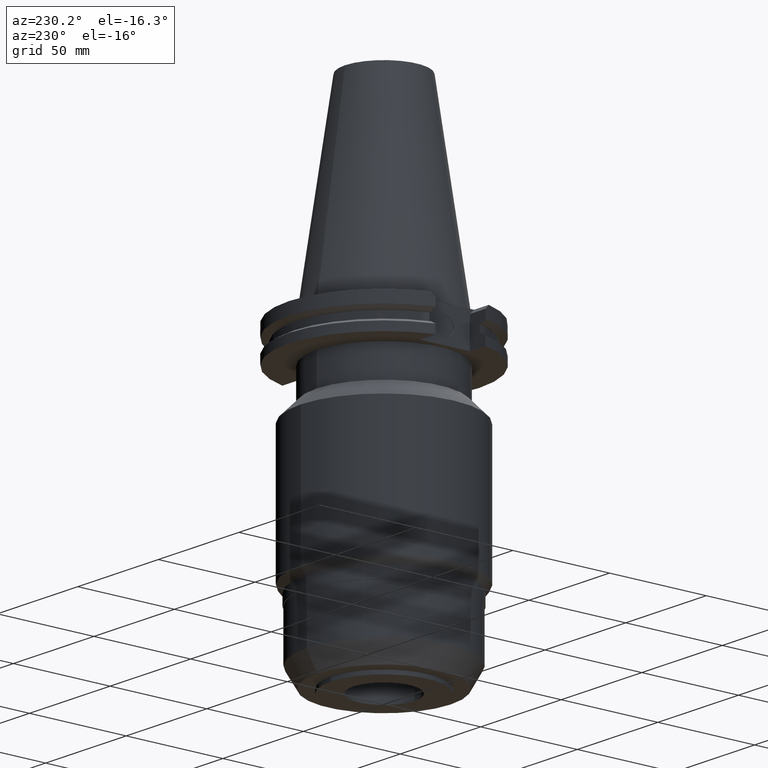
[diagram: clean part render]
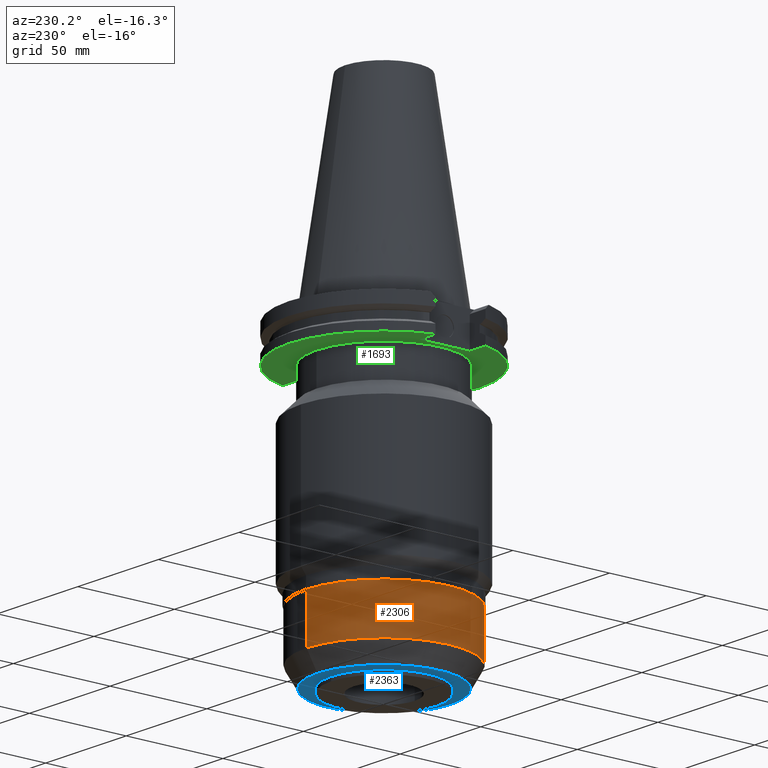
[diagram: same view with three faces highlighted in distinct colors, each labeled with its STEP entity id]
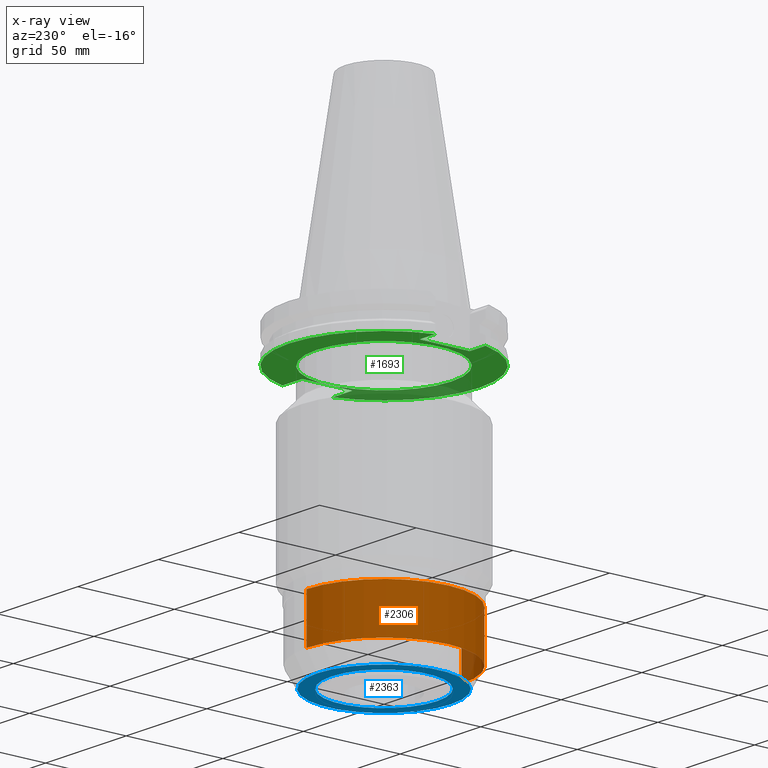
[diagram: x-ray of the same camera — body ghosted, the three highlighted faces saturated]
A machine part, auxiliary view with three faces highlighted in distinct colors.
The next image is the same camera in x-ray (body ghosted, the three faces saturated) — at least one of them is partly hidden behind the body in this view.
Their STEP definitions:

[orange] entity #2306 — the highlighted cylindrical surface (partial cylindrical patch) has radius 40 mm, axis along (0, 0, -1).
#998=CARTESIAN_POINT('',(0.E0,2.625887666732E-14,-1.19E2));
#999=DIRECTION('',(0.E0,0.E0,-1.E0));
#1000=DIRECTION('',(0.E0,-1.E0,0.E0));
#1001=AXIS2_PLACEMENT_3D('',#998,#999,#1000);
#1014=DIRECTION('',(0.E0,-1.140377230232E-14,-1.E0));
#1015=VECTOR('',#1014,2.43E1);
#1016=CARTESIAN_POINT('',(0.E0,-4.E1,-1.19E2));
#1017=LINE('',#1016,#1015);
#1021=DIRECTION('',(0.E0,1.111136788431E-14,-1.E0));
#1022=VECTOR('',#1021,2.43E1);
#1023=CARTESIAN_POINT('',(0.E0,4.E1,-1.19E2));
#1024=LINE('',#1023,#1022);
#1043=CARTESIAN_POINT('',(0.E0,0.E0,-1.433E2));
#1044=DIRECTION('',(0.E0,0.E0,1.E0));
#1045=DIRECTION('',(0.E0,1.E0,0.E0));
#1046=AXIS2_PLACEMENT_3D('',#1043,#1044,#1045);
#1370=CARTESIAN_POINT('',(0.E0,4.E1,-1.433E2));
#1371=VERTEX_POINT('',#1370);
#1372=CARTESIAN_POINT('',(0.E0,-4.E1,-1.433E2));
#1373=VERTEX_POINT('',#1372);
#1374=CARTESIAN_POINT('',(0.E0,4.E1,-1.19E2));
#1375=VERTEX_POINT('',#1374);
#1376=CARTESIAN_POINT('',(0.E0,-4.E1,-1.19E2));
#1377=VERTEX_POINT('',#1376);
#2292=CARTESIAN_POINT('',(0.E0,2.625887666732E-14,1.1442E2));
#2293=DIRECTION('',(0.E0,0.E0,-1.E0));
#2294=DIRECTION('',(0.E0,-1.E0,0.E0));
#2295=AXIS2_PLACEMENT_3D('',#2292,#2293,#2294);
#2296=CYLINDRICAL_SURFACE('',#2295,4.E1);
#2298=ORIENTED_EDGE('',*,*,#2297,.F.);
#2299=ORIENTED_EDGE('',*,*,#2285,.F.);
#2301=ORIENTED_EDGE('',*,*,#2300,.T.);
#2303=ORIENTED_EDGE('',*,*,#2302,.F.);
#2304=EDGE_LOOP('',(#2298,#2299,#2301,#2303));
#2305=FACE_OUTER_BOUND('',#2304,.F.);
#1002=CIRCLE('',#1001,4.E1);
#1047=CIRCLE('',#1046,4.E1);
#2285=EDGE_CURVE('',#1377,#1375,#1002,.T.);
#2297=EDGE_CURVE('',#1375,#1371,#1024,.T.);
#2300=EDGE_CURVE('',#1377,#1373,#1017,.T.);
#2302=EDGE_CURVE('',#1371,#1373,#1047,.T.);
#2306=ADVANCED_FACE('',(#2305),#2296,.T.);

[blue] entity #2363 — the highlighted planar face has unit normal (0, 0, -1).
#1058=CARTESIAN_POINT('',(0.E0,0.E0,-1.528E2));
#1059=DIRECTION('',(0.E0,0.E0,1.E0));
#1060=DIRECTION('',(0.E0,-1.E0,0.E0));
#1061=AXIS2_PLACEMENT_3D('',#1058,#1059,#1060);
#1066=CARTESIAN_POINT('',(0.E0,0.E0,-1.528E2));
#1067=DIRECTION('',(0.E0,0.E0,1.E0));
#1068=DIRECTION('',(0.E0,1.E0,0.E0));
#1069=AXIS2_PLACEMENT_3D('',#1066,#1067,#1068);
#1074=CARTESIAN_POINT('',(0.E0,2.625887666732E-14,-1.528E2));
#1075=DIRECTION('',(0.E0,0.E0,-1.E0));
#1076=DIRECTION('',(0.E0,-1.E0,0.E0));
#1077=AXIS2_PLACEMENT_3D('',#1074,#1075,#1076);
#1082=CARTESIAN_POINT('',(0.E0,2.625887666732E-14,-1.528E2));
#1083=DIRECTION('',(0.E0,0.E0,-1.E0));
#1084=DIRECTION('',(0.E0,1.E0,0.E0));
#1085=AXIS2_PLACEMENT_3D('',#1082,#1083,#1084);
#1362=CARTESIAN_POINT('',(0.E0,2.735E1,-1.528E2));
#1363=VERTEX_POINT('',#1362);
#1364=CARTESIAN_POINT('',(0.E0,-2.735E1,-1.528E2));
#1365=VERTEX_POINT('',#1364);
#1366=CARTESIAN_POINT('',(0.E0,-3.451517244270E1,-1.528E2));
#1367=CARTESIAN_POINT('',(0.E0,3.451517244270E1,-1.528E2));
#1368=VERTEX_POINT('',#1366);
#1369=VERTEX_POINT('',#1367);
#2348=CARTESIAN_POINT('',(0.E0,0.E0,-1.528E2));
#2349=DIRECTION('',(0.E0,0.E0,-1.E0));
#2350=DIRECTION('',(0.E0,-1.E0,0.E0));
#2351=AXIS2_PLACEMENT_3D('',#2348,#2349,#2350);
#2352=PLANE('',#2351);
#2353=ORIENTED_EDGE('',*,*,#2327,.T.);
#2354=ORIENTED_EDGE('',*,*,#2343,.T.);
#2355=EDGE_LOOP('',(#2353,#2354));
#2356=FACE_OUTER_BOUND('',#2355,.F.);
#2358=ORIENTED_EDGE('',*,*,#2357,.T.);
#2360=ORIENTED_EDGE('',*,*,#2359,.T.);
#2361=EDGE_LOOP('',(#2358,#2360));
#2362=FACE_BOUND('',#2361,.F.);
#1062=CIRCLE('',#1061,3.451517244270E1);
#1070=CIRCLE('',#1069,3.451517244270E1);
#1078=CIRCLE('',#1077,2.735E1);
#1086=CIRCLE('',#1085,2.735E1);
#2327=EDGE_CURVE('',#1368,#1369,#1062,.T.);
#2343=EDGE_CURVE('',#1369,#1368,#1070,.T.);
#2357=EDGE_CURVE('',#1365,#1363,#1078,.T.);
#2359=EDGE_CURVE('',#1363,#1365,#1086,.T.);
#2363=ADVANCED_FACE('',(#2356,#2362),#2352,.T.);

[green] entity #1693 — the highlighted planar face has unit normal (0, 0, -1).
#170=DIRECTION('',(0.E0,-1.E0,0.E0));
#171=VECTOR('',#170,2.591E1);
#172=CARTESIAN_POINT('',(3.527E1,1.2955E1,-1.905E1));
#173=LINE('',#172,#171);
#205=DIRECTION('',(1.E0,1.455229645531E-14,0.E0));
#206=VECTOR('',#205,1.220671146204E1);
#207=CARTESIAN_POINT('',(3.527E1,1.2955E1,-1.905E1));
#208=LINE('',#207,#206);
#212=CARTESIAN_POINT('',(0.E0,2.625887666732E-14,-1.905E1));
#213=DIRECTION('',(0.E0,0.E0,1.E0));
#214=DIRECTION('',(9.647287063661E-1,2.632461264923E-1,0.E0));
#215=AXIS2_PLACEMENT_3D('',#212,#213,#214);
#220=CARTESIAN_POINT('',(0.E0,2.625887666732E-14,-1.905E1));
#221=DIRECTION('',(0.E0,0.E0,1.E0));
#222=DIRECTION('',(0.E0,1.E0,0.E0));
#223=AXIS2_PLACEMENT_3D('',#220,#221,#222);
#228=DIRECTION('',(-1.E0,-1.795085297572E-14,0.E0));
#229=VECTOR('',#228,9.796711462041E0);
#230=CARTESIAN_POINT('',(-3.768E1,-1.2955E1,-1.905E1));
#231=LINE('',#230,#229);
#235=CARTESIAN_POINT('',(0.E0,2.625887666732E-14,-1.905E1));
#236=DIRECTION('',(0.E0,0.E0,1.E0));
#237=DIRECTION('',(-9.647287063661E-1,-2.632461264923E-1,0.E0));
#238=AXIS2_PLACEMENT_3D('',#235,#236,#237);
#243=CARTESIAN_POINT('',(0.E0,2.625887666732E-14,-1.905E1));
#244=DIRECTION('',(0.E0,0.E0,1.E0));
#245=DIRECTION('',(0.E0,-1.E0,0.E0));
#246=AXIS2_PLACEMENT_3D('',#243,#244,#245);
#251=CARTESIAN_POINT('',(0.E0,2.625887666732E-14,-1.905E1));
#252=DIRECTION('',(0.E0,0.E0,-1.E0));
#253=DIRECTION('',(0.E0,-1.E0,0.E0));
#254=AXIS2_PLACEMENT_3D('',#251,#252,#253);
#259=CARTESIAN_POINT('',(0.E0,2.625887666732E-14,-1.905E1));
#260=DIRECTION('',(0.E0,0.E0,-1.E0));
#261=DIRECTION('',(0.E0,1.E0,0.E0));
#262=AXIS2_PLACEMENT_3D('',#259,#260,#261);
#318=DIRECTION('',(0.E0,1.E0,0.E0));
#319=VECTOR('',#318,2.591E1);
#320=CARTESIAN_POINT('',(-3.768E1,-1.2955E1,-1.905E1));
#321=LINE('',#320,#319);
#355=DIRECTION('',(-1.E0,1.813217472295E-14,0.E0));
#356=VECTOR('',#355,9.796711462041E0);
#357=CARTESIAN_POINT('',(-3.768E1,1.2955E1,-1.905E1));
#358=LINE('',#357,#356);
#605=DIRECTION('',(1.E0,-1.411572756165E-14,0.E0));
#606=VECTOR('',#605,1.220671146204E1);
#607=CARTESIAN_POINT('',(3.527E1,-1.2955E1,-1.905E1));
#608=LINE('',#607,#606);
#1398=CARTESIAN_POINT('',(0.E0,3.4925E1,-1.905E1));
#1399=VERTEX_POINT('',#1398);
#1400=CARTESIAN_POINT('',(0.E0,-3.4925E1,-1.905E1));
#1401=VERTEX_POINT('',#1400);
#1402=CARTESIAN_POINT('',(3.527E1,1.2955E1,-1.905E1));
#1403=CARTESIAN_POINT('',(3.527E1,-1.2955E1,-1.905E1));
#1404=VERTEX_POINT('',#1402);
#1405=VERTEX_POINT('',#1403);
#1406=CARTESIAN_POINT('',(4.747671146204E1,1.2955E1,-1.905E1));
#1407=VERTEX_POINT('',#1406);
#1408=CARTESIAN_POINT('',(0.E0,4.92125E1,-1.905E1));
#1409=CARTESIAN_POINT('',(-4.747671146204E1,1.2955E1,-1.905E1));
#1410=VERTEX_POINT('',#1408);
#1411=VERTEX_POINT('',#1409);
#1412=CARTESIAN_POINT('',(-3.768E1,1.2955E1,-1.905E1));
#1413=VERTEX_POINT('',#1412);
#1414=CARTESIAN_POINT('',(-3.768E1,-1.2955E1,-1.905E1));
#1415=VERTEX_POINT('',#1414);
#1416=CARTESIAN_POINT('',(-4.747671146204E1,-1.2955E1,-1.905E1));
#1417=VERTEX_POINT('',#1416);
#1418=CARTESIAN_POINT('',(0.E0,-4.92125E1,-1.905E1));
#1419=CARTESIAN_POINT('',(4.747671146204E1,-1.2955E1,-1.905E1));
#1420=VERTEX_POINT('',#1418);
#1421=VERTEX_POINT('',#1419);
#1661=CARTESIAN_POINT('',(0.E0,0.E0,-1.905E1));
#1662=DIRECTION('',(0.E0,0.E0,-1.E0));
#1663=DIRECTION('',(0.E0,-1.E0,0.E0));
#1664=AXIS2_PLACEMENT_3D('',#1661,#1662,#1663);
#1665=PLANE('',#1664);
#1666=ORIENTED_EDGE('',*,*,#1647,.F.);
#1668=ORIENTED_EDGE('',*,*,#1667,.T.);
#1670=ORIENTED_EDGE('',*,*,#1669,.T.);
#1672=ORIENTED_EDGE('',*,*,#1671,.T.);
#1674=ORIENTED_EDGE('',*,*,#1673,.F.);
#1676=ORIENTED_EDGE('',*,*,#1675,.F.);
#1678=ORIENTED_EDGE('',*,*,#1677,.T.);
#1680=ORIENTED_EDGE('',*,*,#1679,.T.);
#1682=ORIENTED_EDGE('',*,*,#1681,.T.);
#1684=ORIENTED_EDGE('',*,*,#1683,.F.);
#1685=EDGE_LOOP('',(#1666,#1668,#1670,#1672,#1674,#1676,#1678,#1680,#1682,
#1684));
#1686=FACE_OUTER_BOUND('',#1685,.F.);
#1688=ORIENTED_EDGE('',*,*,#1687,.T.);
#1690=ORIENTED_EDGE('',*,*,#1689,.T.);
#1691=EDGE_LOOP('',(#1688,#1690));
#1692=FACE_BOUND('',#1691,.F.);
#216=CIRCLE('',#215,4.92125E1);
#224=CIRCLE('',#223,4.92125E1);
#239=CIRCLE('',#238,4.92125E1);
#247=CIRCLE('',#246,4.92125E1);
#255=CIRCLE('',#254,3.4925E1);
#263=CIRCLE('',#262,3.4925E1);
#1647=EDGE_CURVE('',#1404,#1405,#173,.T.);
#1667=EDGE_CURVE('',#1404,#1407,#208,.T.);
#1669=EDGE_CURVE('',#1407,#1410,#216,.T.);
#1671=EDGE_CURVE('',#1410,#1411,#224,.T.);
#1673=EDGE_CURVE('',#1413,#1411,#358,.T.);
#1675=EDGE_CURVE('',#1415,#1413,#321,.T.);
#1677=EDGE_CURVE('',#1415,#1417,#231,.T.);
#1679=EDGE_CURVE('',#1417,#1420,#239,.T.);
#1681=EDGE_CURVE('',#1420,#1421,#247,.T.);
#1683=EDGE_CURVE('',#1405,#1421,#608,.T.);
#1687=EDGE_CURVE('',#1401,#1399,#255,.T.);
#1689=EDGE_CURVE('',#1399,#1401,#263,.T.);
#1693=ADVANCED_FACE('',(#1686,#1692),#1665,.T.);